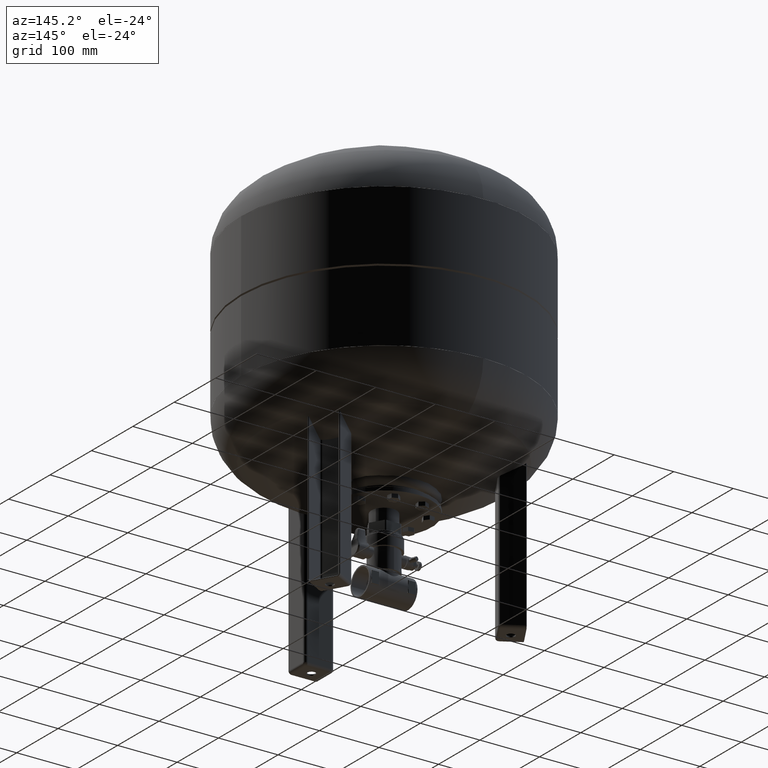
[diagram: clean part render]
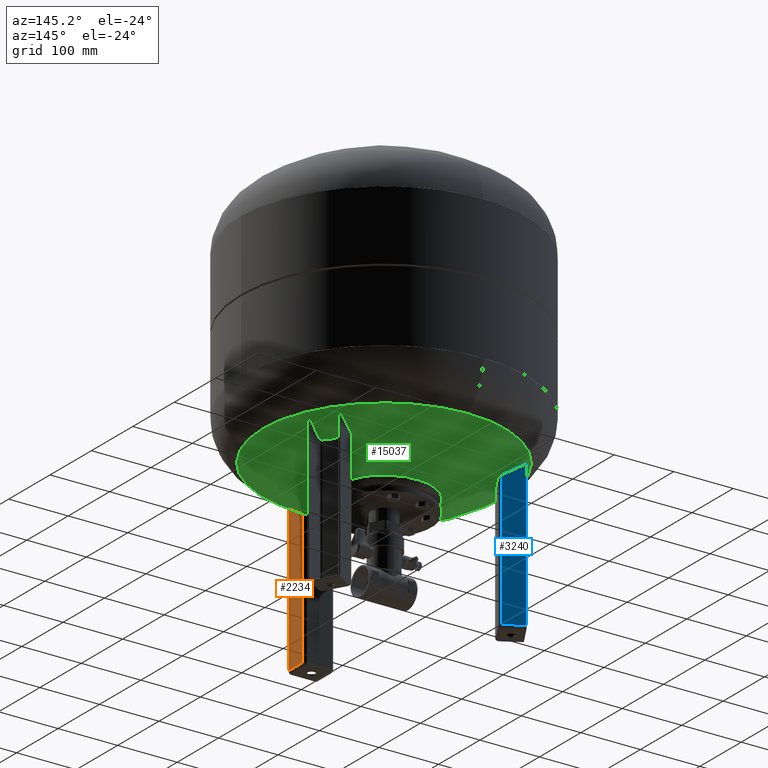
[diagram: same view with three faces highlighted in distinct colors, each labeled with its STEP entity id]
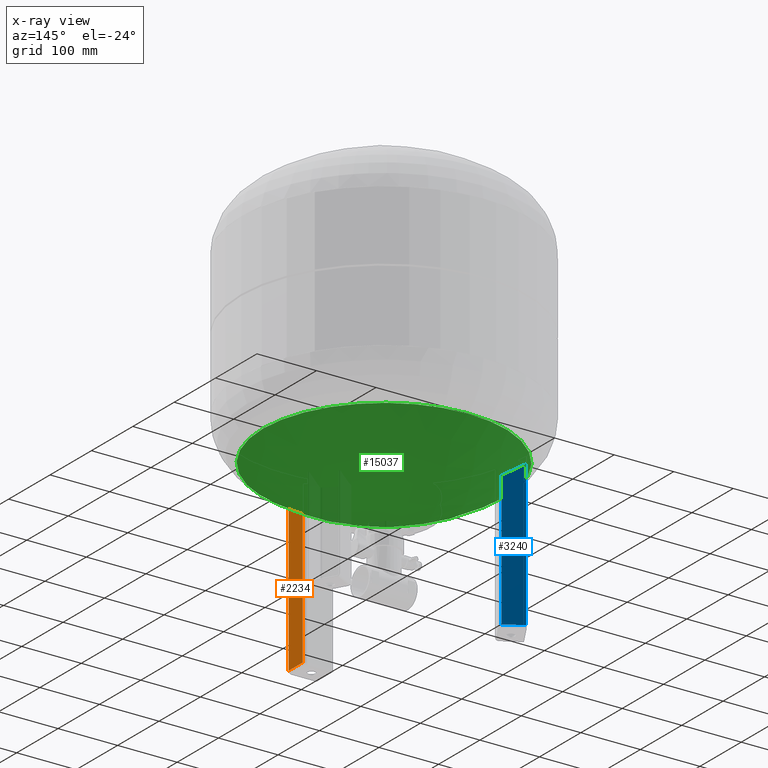
[diagram: x-ray of the same camera — body ghosted, the three highlighted faces saturated]
A machine part, auxiliary view with three faces highlighted in distinct colors.
The next image is the same camera in x-ray (body ghosted, the three faces saturated) — at least one of them is partly hidden behind the body in this view.
Their STEP definitions:

[orange] entity #2234 — the highlighted planar face has unit normal (1, 0, 0).
#1332=CARTESIAN_POINT('',(24.999999999999996,-194.500000000000000,274.0));
#1333=VERTEX_POINT('',#1332);
#1341=CARTESIAN_POINT('',(24.999999999999996,-160.500000000000000,274.0));
#1342=VERTEX_POINT('',#1341);
#1343=CARTESIAN_POINT('',(24.999999999999996,-160.500000000000000,274.0));
#1344=DIRECTION('',(0.0,-1.0,0.0));
#1345=VECTOR('',#1344,34.0);
#1346=LINE('',#1343,#1345);
#1347=EDGE_CURVE('',#1342,#1333,#1346,.T.);
#1777=CARTESIAN_POINT('',(25.0,-194.500000000000000,5.000000000000004));
#1778=VERTEX_POINT('',#1777);
#1805=CARTESIAN_POINT('',(25.0,-194.500000000000000,5.000000000000004));
#1806=DIRECTION('',(0.0,0.0,1.0));
#1807=VECTOR('',#1806,269.0);
#1808=LINE('',#1805,#1807);
#1809=EDGE_CURVE('',#1778,#1333,#1808,.T.);
#1969=CARTESIAN_POINT('',(25.000000000000004,-160.500000000000000,5.000000000000004));
#1970=VERTEX_POINT('',#1969);
#1978=CARTESIAN_POINT('',(25.000000000000004,-160.500000000000000,5.000000000000004));
#1979=DIRECTION('',(0.0,-1.0,0.0));
#1980=VECTOR('',#1979,34.0);
#1981=LINE('',#1978,#1980);
#1982=EDGE_CURVE('',#1970,#1778,#1981,.T.);
#2104=CARTESIAN_POINT('',(25.000000000000004,-160.500000000000000,5.000000000000004));
#2105=DIRECTION('',(0.0,0.0,1.0));
#2106=VECTOR('',#2105,269.0);
#2107=LINE('',#2104,#2106);
#2108=EDGE_CURVE('',#1970,#1342,#2107,.T.);
#2223=CARTESIAN_POINT('',(25.000000000000004,-155.500000000000000,4.592425E-015));
#2224=DIRECTION('',(1.0,0.0,0.0));
#2225=DIRECTION('',(0.0,1.0,0.0));
#2226=AXIS2_PLACEMENT_3D('',#2223,#2224,#2225);
#2227=PLANE('',#2226);
#2228=ORIENTED_EDGE('',*,*,#1809,.F.);
#2229=ORIENTED_EDGE('',*,*,#1982,.F.);
#2230=ORIENTED_EDGE('',*,*,#2108,.T.);
#2231=ORIENTED_EDGE('',*,*,#1347,.T.);
#2232=EDGE_LOOP('',(#2228,#2229,#2230,#2231));
#2233=FACE_OUTER_BOUND('',#2232,.T.);
#2234=ADVANCED_FACE('',(#2233),#2227,.T.);

[blue] entity #3240 — the highlighted planar face has unit normal (0.5, 0.866, -0).
#2412=CARTESIAN_POINT('',(-126.497077307402320,101.900635094611030,274.0));
#2413=VERTEX_POINT('',#2412);
#2421=CARTESIAN_POINT('',(-155.941941036073250,118.900635094611030,274.0));
#2422=VERTEX_POINT('',#2421);
#2423=CARTESIAN_POINT('',(-155.941941036073250,118.900635094611030,274.0));
#2424=DIRECTION('',(0.866025403784439,-0.500000000000000,0.0));
#2425=VECTOR('',#2424,34.000000000000007);
#2426=LINE('',#2423,#2425);
#2427=EDGE_CURVE('',#2422,#2413,#2426,.T.);
#2732=CARTESIAN_POINT('',(-155.941941036073250,118.900635094611030,4.999999999999996));
#2733=VERTEX_POINT('',#2732);
#2734=CARTESIAN_POINT('',(-155.941941036073250,118.900635094611030,4.999999999999996));
#2735=DIRECTION('',(0.0,0.0,1.0));
#2736=VECTOR('',#2735,269.0);
#2737=LINE('',#2734,#2736);
#2738=EDGE_CURVE('',#2733,#2422,#2737,.T.);
#3115=CARTESIAN_POINT('',(-126.497077307402320,101.900635094611030,4.999999999999996));
#3116=VERTEX_POINT('',#3115);
#3117=CARTESIAN_POINT('',(-155.941941036073250,118.900635094611030,4.999999999999996));
#3118=DIRECTION('',(0.866025403784439,-0.500000000000000,0.0));
#3119=VECTOR('',#3118,34.000000000000007);
#3120=LINE('',#3117,#3119);
#3121=EDGE_CURVE('',#2733,#3116,#3120,.T.);
#3218=CARTESIAN_POINT('',(-126.497077307402320,101.900635094611030,4.999999999999996));
#3219=DIRECTION('',(0.0,0.0,1.0));
#3220=VECTOR('',#3219,269.0);
#3221=LINE('',#3218,#3220);
#3222=EDGE_CURVE('',#3116,#2413,#3221,.T.);
#3229=CARTESIAN_POINT('',(-156.807966439857690,119.400635094611020,-4.592425E-015));
#3230=DIRECTION('',(0.500000000000000,0.866025403784439,-1.836970E-016));
#3231=DIRECTION('',(-0.866025403784439,0.500000000000000,2.039447E-032));
#3232=AXIS2_PLACEMENT_3D('',#3229,#3230,#3231);
#3233=PLANE('',#3232);
#3234=ORIENTED_EDGE('',*,*,#2738,.T.);
#3235=ORIENTED_EDGE('',*,*,#2427,.T.);
#3236=ORIENTED_EDGE('',*,*,#3222,.F.);
#3237=ORIENTED_EDGE('',*,*,#3121,.F.);
#3238=EDGE_LOOP('',(#3234,#3235,#3236,#3237));
#3239=FACE_OUTER_BOUND('',#3238,.T.);
#3240=ADVANCED_FACE('',(#3239),#3233,.T.);

[green] entity #15037 — the highlighted spherical surface has radius 354.5 mm.
#14976=CARTESIAN_POINT('',(-4.111121E-015,-203.325884543761560,254.105725479139470));
#14977=VERTEX_POINT('',#14976);
#14993=CARTESIAN_POINT('',(-2.901054E-014,203.325884543761560,254.105725479139550));
#14994=VERTEX_POINT('',#14993);
#15002=CARTESIAN_POINT('',(-203.325884543761560,1.302307E-014,254.105725479139490));
#15003=VERTEX_POINT('',#15002);
#15004=CARTESIAN_POINT('',(4.711066E-015,1.302307E-014,254.105725479139520));
#15005=DIRECTION('',(0.0,0.0,1.0));
#15006=DIRECTION('',(-1.0,0.0,0.0));
#15007=AXIS2_PLACEMENT_3D('',#15004,#15005,#15006);
#15008=CIRCLE('',#15007,203.325884543761560);
#15009=EDGE_CURVE('',#14994,#15003,#15008,.T.);
#15011=CARTESIAN_POINT('',(4.711066E-015,1.302307E-014,254.105725479139520));
#15012=DIRECTION('',(0.0,0.0,1.0));
#15013=DIRECTION('',(-1.0,0.0,0.0));
#15014=AXIS2_PLACEMENT_3D('',#15011,#15012,#15013);
#15015=CIRCLE('',#15014,203.325884543761560);
#15016=EDGE_CURVE('',#15003,#14977,#15015,.T.);
#15021=CARTESIAN_POINT('',(-5.376199E-014,-4.032150E-014,544.500000000000000));
#15022=DIRECTION('',(0.0,-1.0,0.0));
#15023=DIRECTION('',(1.0,0.0,0.0));
#15024=AXIS2_PLACEMENT_3D('',#15021,#15022,#15023);
#15025=SPHERICAL_SURFACE('',#15024,354.500000000000170);
#15026=ORIENTED_EDGE('',*,*,#15016,.F.);
#15027=ORIENTED_EDGE('',*,*,#15009,.F.);
#15028=CARTESIAN_POINT('',(4.711066E-015,1.302307E-014,254.105725479139520));
#15029=DIRECTION('',(0.0,0.0,1.0));
#15030=DIRECTION('',(-1.0,0.0,0.0));
#15031=AXIS2_PLACEMENT_3D('',#15028,#15029,#15030);
#15032=CIRCLE('',#15031,203.325884543761560);
#15033=EDGE_CURVE('',#14977,#14994,#15032,.T.);
#15034=ORIENTED_EDGE('',*,*,#15033,.F.);
#15035=EDGE_LOOP('',(#15026,#15027,#15034));
#15036=FACE_OUTER_BOUND('',#15035,.T.);
#15037=ADVANCED_FACE('',(#15036),#15025,.T.);